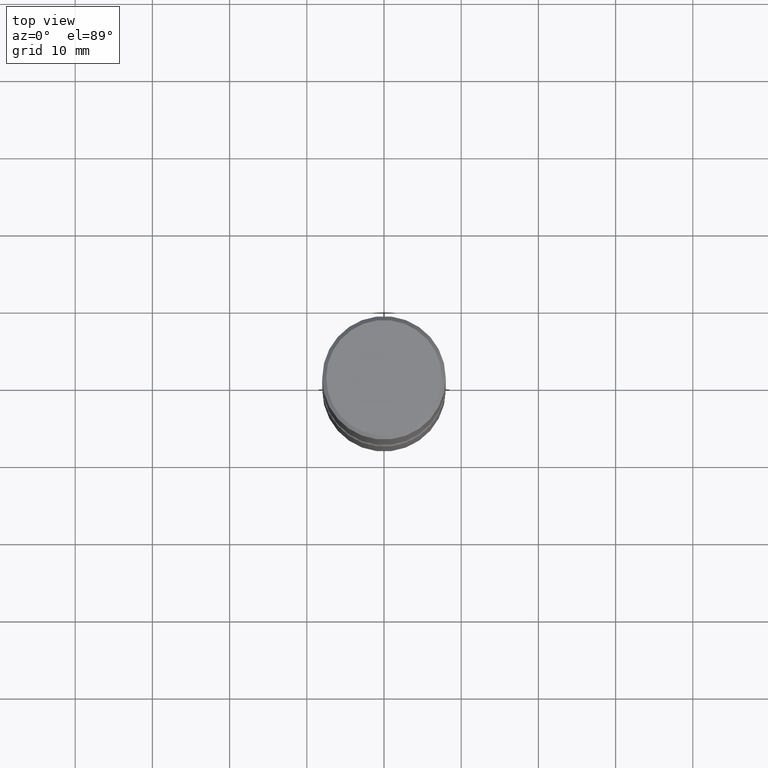
[diagram: clean part render]
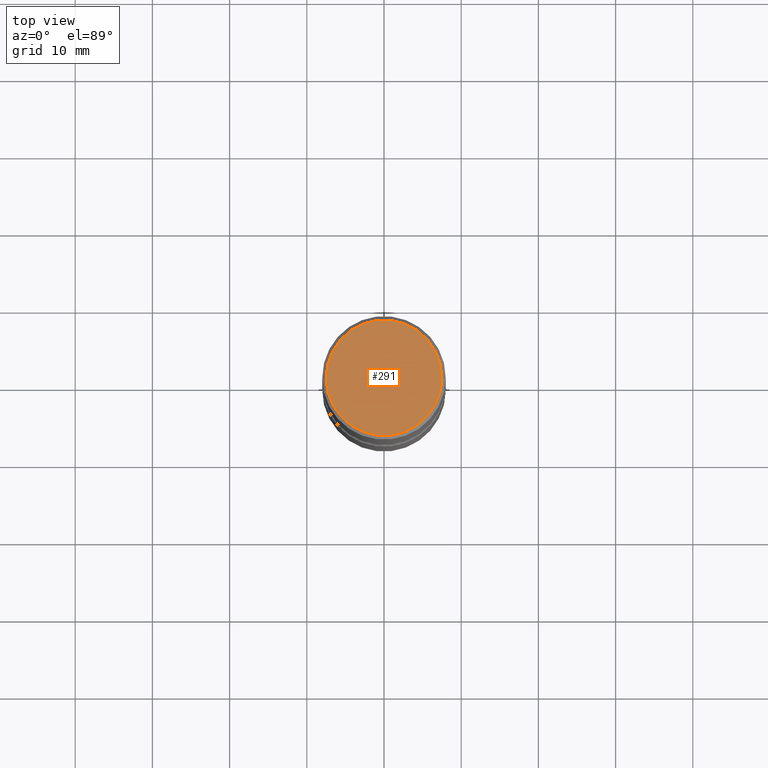
[diagram: same view with one face highlighted and labeled with its STEP entity id]
A machine part, top view. The second image highlights one B-rep face of the part: STEP entity #291.
In plain terms, the highlighted planar face has unit normal (0, -0, -1).
Its self-contained STEP definition (entity closure, byte-faithful):
#68 = PLANE ( 'NONE',  #432 ) ;
#109 = FACE_OUTER_BOUND ( 'NONE', #434, .T. ) ;
#123 = CARTESIAN_POINT ( 'NONE',  ( -0.2949500000000001565, 2.094539655171996896E-15, 1.280553747028672311E-17 ) ) ;
#128 = AXIS2_PLACEMENT_3D ( 'NONE', #210, #382, #507 ) ;
#150 = VERTEX_POINT ( 'NONE', #123 ) ;
#191 = ORIENTED_EDGE ( 'NONE', *, *, #488, .T. ) ;
#210 = CARTESIAN_POINT ( 'NONE',  ( -3.131554243005663153E-46, 4.471029511141347348E-32, 1.280553747030124924E-17 ) ) ;
#232 = CARTESIAN_POINT ( 'NONE',  ( 2.059624841783565247E-15, 0.2949500000000001565, -1.023409652156635730E-15 ) ) ;
#246 = DIRECTION ( 'NONE',  ( -2.445468806185136597E-29, 3.491481338843145583E-15, 1.000000000000000000 ) ) ;
#253 = CARTESIAN_POINT ( 'NONE',  ( -3.131554243005663153E-46, 4.471029511141347348E-32, 1.280553747030124924E-17 ) ) ;
#291 = ADVANCED_FACE ( 'NONE', ( #109 ), #68, .F. ) ;
#311 = VERTEX_POINT ( 'NONE', #340 ) ;
#321 = DIRECTION ( 'NONE',  ( -1.000000000000000000, 6.982962677686265922E-15, -4.876176775795935793E-29 ) ) ;
#340 = CARTESIAN_POINT ( 'NONE',  ( 0.2949500000000001565, -2.127023677808861258E-15, 1.280553747031588939E-17 ) ) ;
#382 = DIRECTION ( 'NONE',  ( -2.445468806185136597E-29, 3.491481338843145583E-15, 1.000000000000000000 ) ) ;
#386 = DIRECTION ( 'NONE',  ( 1.000000000000000000, -6.982962677686267499E-15, 4.876053491004732105E-29 ) ) ;
#404 = DIRECTION ( 'NONE',  ( 2.438088387897960049E-29, -3.491481338843145188E-15, -1.000000000000000000 ) ) ;
#407 = AXIS2_PLACEMENT_3D ( 'NONE', #253, #246, #386 ) ;
#432 = AXIS2_PLACEMENT_3D ( 'NONE', #232, #404, #321 ) ;
#434 = EDGE_LOOP ( 'NONE', ( #191, #436 ) ) ;
#436 = ORIENTED_EDGE ( 'NONE', *, *, #476, .T. ) ;
#468 = CIRCLE ( 'NONE', #128, 0.2949500000000001565 ) ;
#476 = EDGE_CURVE ( 'NONE', #311, #150, #536, .T. ) ;
#488 = EDGE_CURVE ( 'NONE', #150, #311, #468, .T. ) ;
#507 = DIRECTION ( 'NONE',  ( 1.000000000000000000, -6.982962677686267499E-15, 4.876053491004732105E-29 ) ) ;
#536 = CIRCLE ( 'NONE', #407, 0.2949500000000001565 ) ;